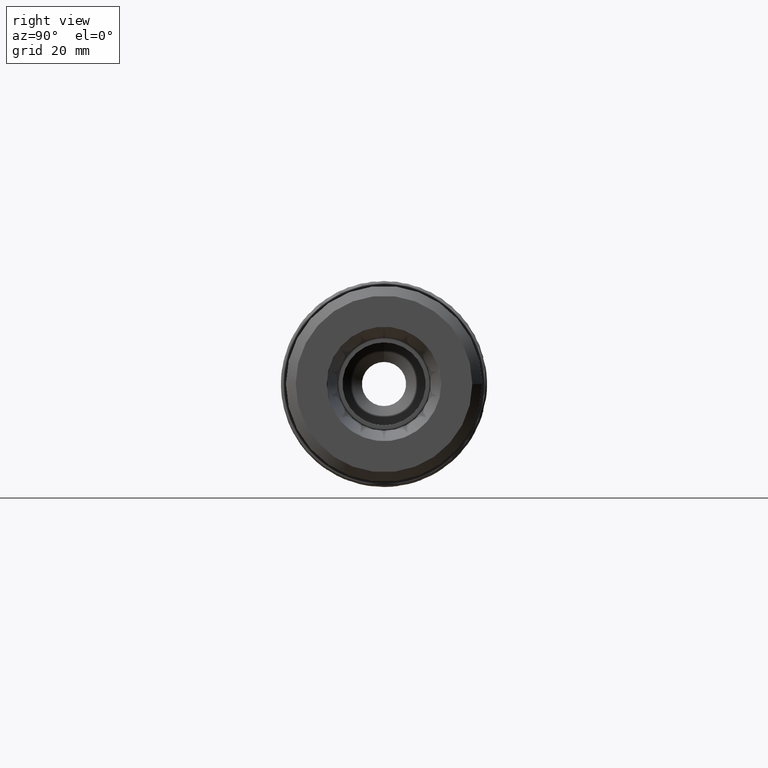
[diagram: clean part render]
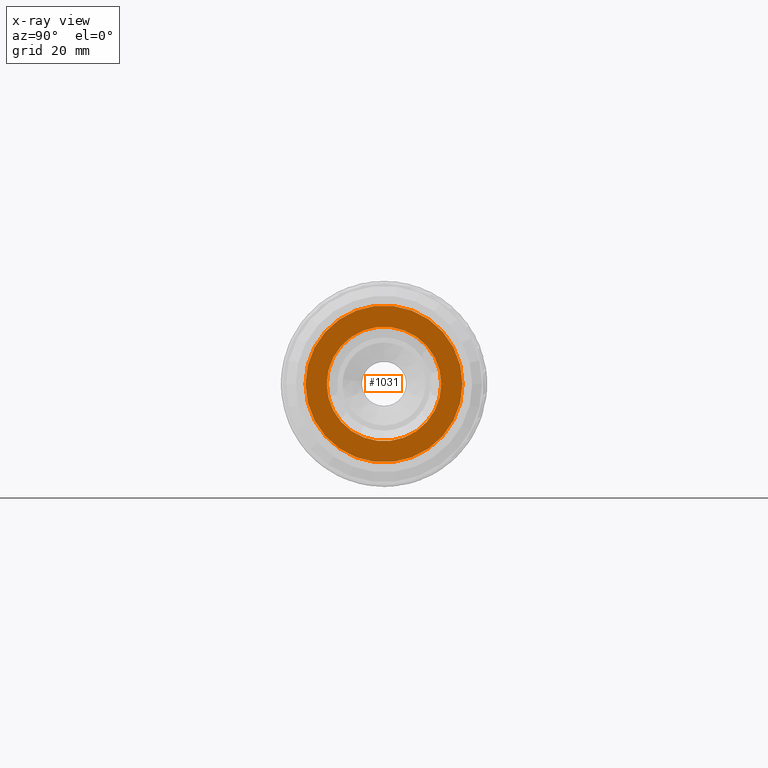
[diagram: x-ray — body ghosted, one internal face saturated and labeled with its STEP entity id]
A machine part, right view, then the same camera in x-ray: the body is ghosted and one INTERNAL B-rep face — a face not visible from any outside direction — is saturated and labeled: STEP entity #1031.
In plain terms, the highlighted planar face has unit normal (1, 0, 0).
Its self-contained STEP definition (entity closure, byte-faithful):
#69=FACE_BOUND('',#238,.T.);
#90=PLANE('',#1234);
#167=FACE_OUTER_BOUND('',#237,.T.);
#237=EDGE_LOOP('',(#935));
#238=EDGE_LOOP('',(#936));
#419=CIRCLE('',#1233,17.5);
#420=CIRCLE('',#1235,24.);
#514=VERTEX_POINT('',#1964);
#515=VERTEX_POINT('',#1968);
#656=EDGE_CURVE('',#514,#514,#419,.T.);
#657=EDGE_CURVE('',#515,#515,#420,.T.);
#935=ORIENTED_EDGE('',*,*,#657,.T.);
#936=ORIENTED_EDGE('',*,*,#656,.F.);
#1031=ADVANCED_FACE('',(#167,#69),#90,.F.);
#1233=AXIS2_PLACEMENT_3D('',#1966,#1545,#1546);
#1234=AXIS2_PLACEMENT_3D('',#1967,#1547,#1548);
#1235=AXIS2_PLACEMENT_3D('',#1969,#1549,#1550);
#1545=DIRECTION('center_axis',(-1.,0.,0.));
#1546=DIRECTION('ref_axis',(0.,0.,1.));
#1547=DIRECTION('center_axis',(1.,0.,0.));
#1548=DIRECTION('ref_axis',(0.,0.,-1.));
#1549=DIRECTION('center_axis',(-1.,0.,0.));
#1550=DIRECTION('ref_axis',(0.,0.,1.));
#1964=CARTESIAN_POINT('',(16.,-17.5,2.14313189850787E-15));
#1966=CARTESIAN_POINT('Origin',(16.,0.,0.));
#1967=CARTESIAN_POINT('Origin',(16.,24.,0.));
#1968=CARTESIAN_POINT('',(16.,-24.,2.93915231795365E-15));
#1969=CARTESIAN_POINT('Origin',(16.,0.,0.));